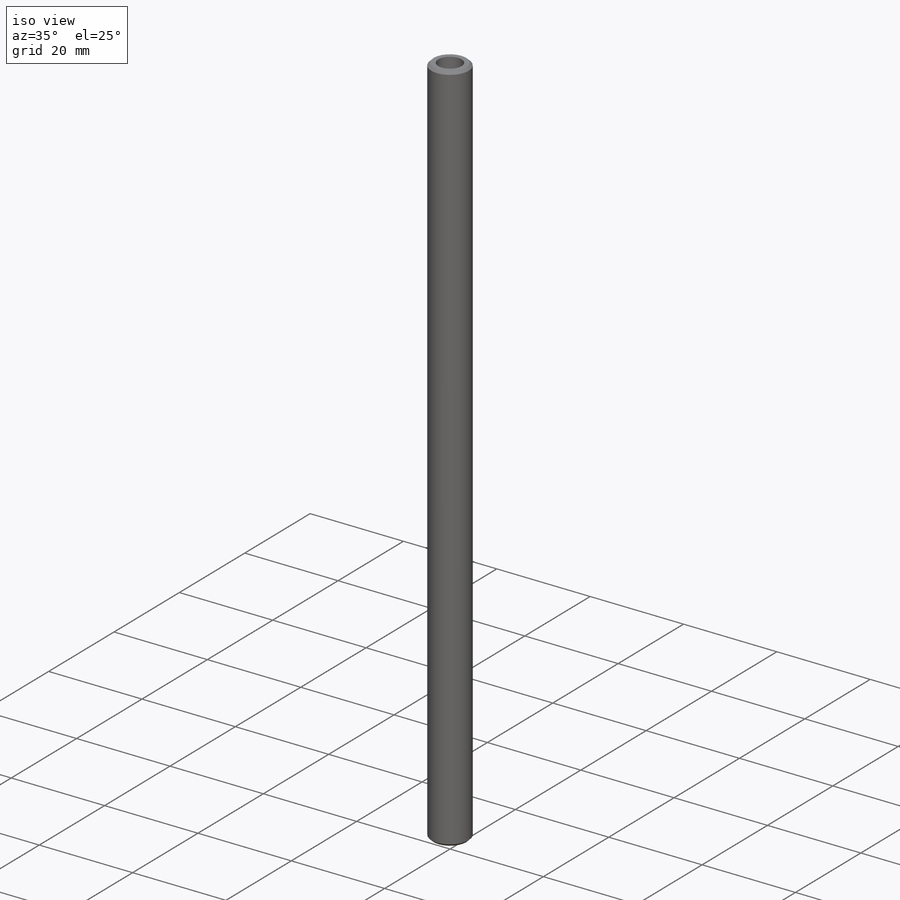
[diagram: iso view]
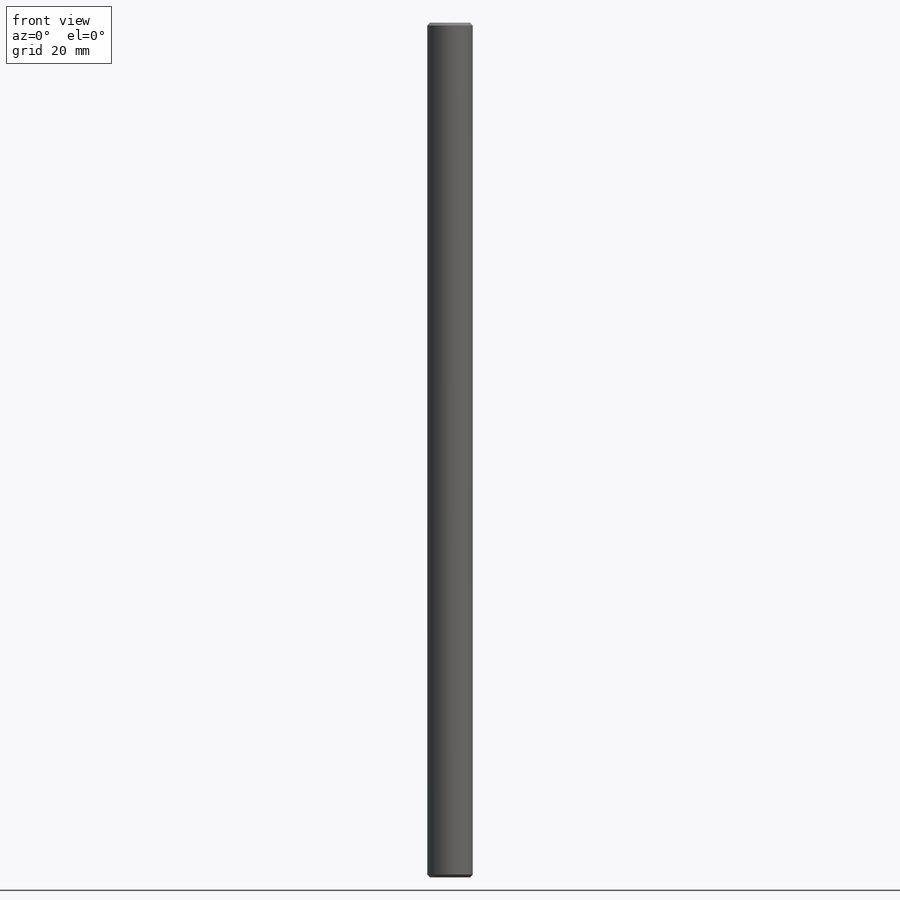
[diagram: front view]
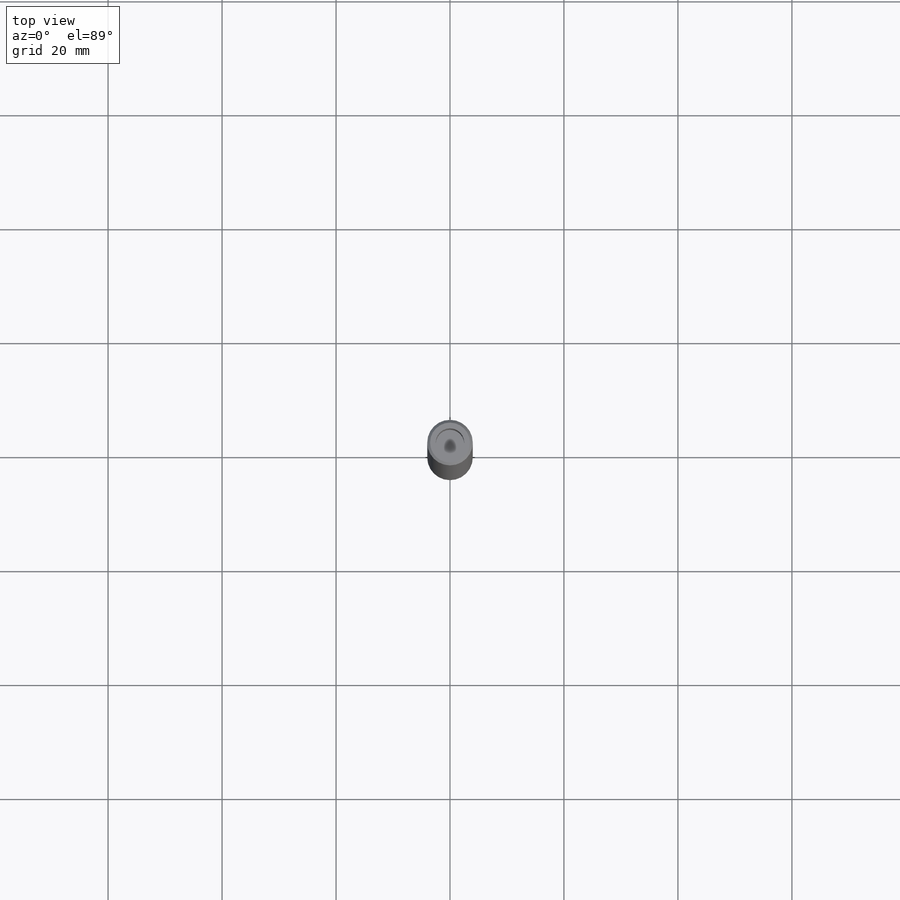
[diagram: top view]
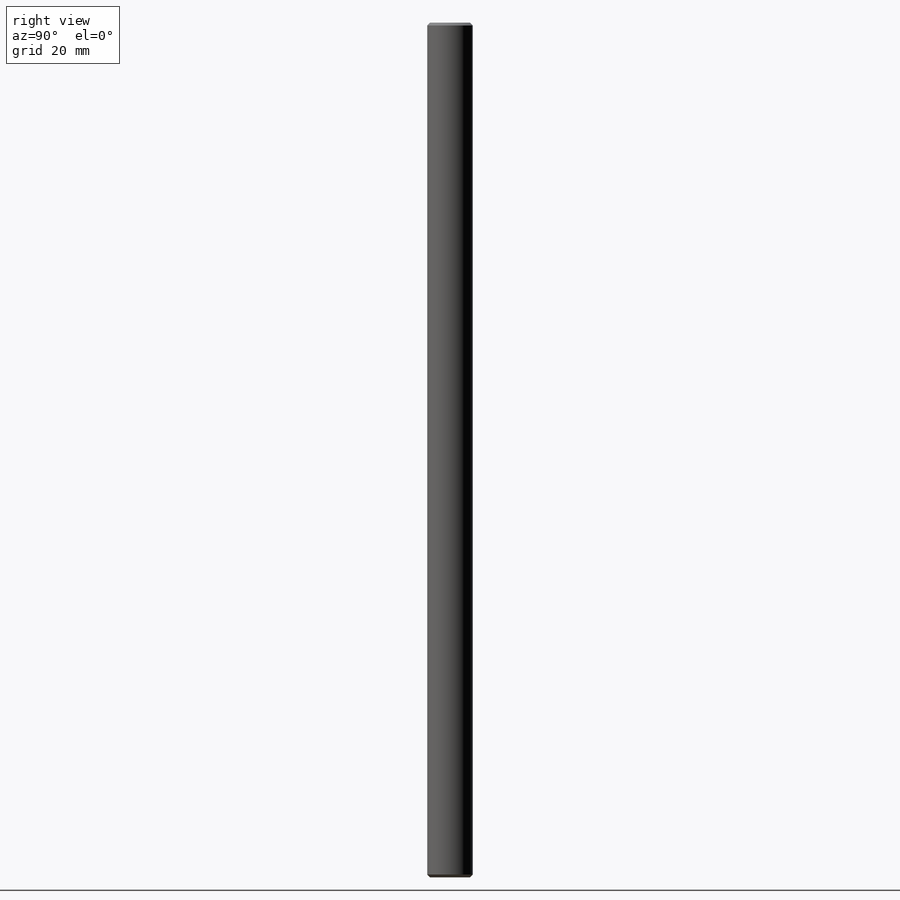
[diagram: right view]
SOLIDWORKS PART (.sldprt)
format: sldprt  version: not decoded by parser v0  size: 116,736 bytes
history: native  units: mm
features: plane x3, sketch x3, cut_extrude x2, material x1, extrude x1, chamfer x1 (+9 scaffold rows collapsed)
feature tree (20):
  scaffold x9  (default folders/planes/origin — collapsed)
  material  "Material <not specified>"
  plane  "Face"
  plane  "Dessus"
  plane  "Droite"
  sketch  "Esquisse1"  dims[D1=8.0mm]
  extrude  "Extrusion1"  Depth=150mm
  chamfer  "Chanfrein1"  Distance=0.5mm Angle=45deg
  sketch  "Esquisse2"  dims[D1=5.0mm]
  cut_extrude  "Extrusion2"  Depth=15mm
  sketch  "Esquisse3"  dims[D1=5.0mm]
  cut_extrude  "Extrusion3"  Depth=15mm
decode coverage: 7 of 7 modeling features carry decoded parameters
note: suppression state not decoded; provenance and decode notes live in map.json
